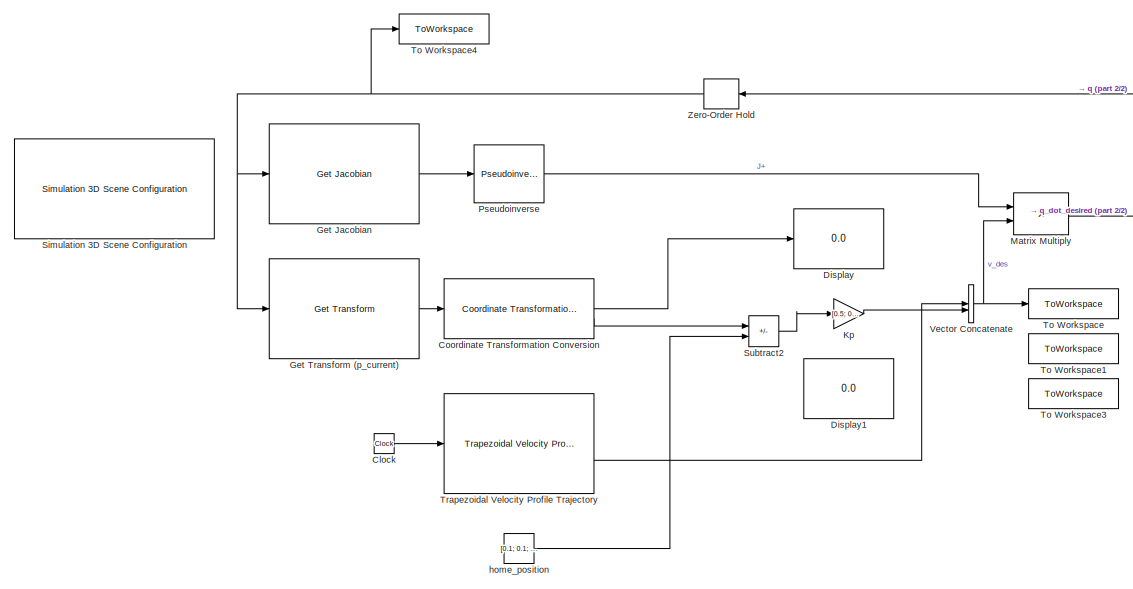
[diagram: root canvas - part 1/2, left side, full height]
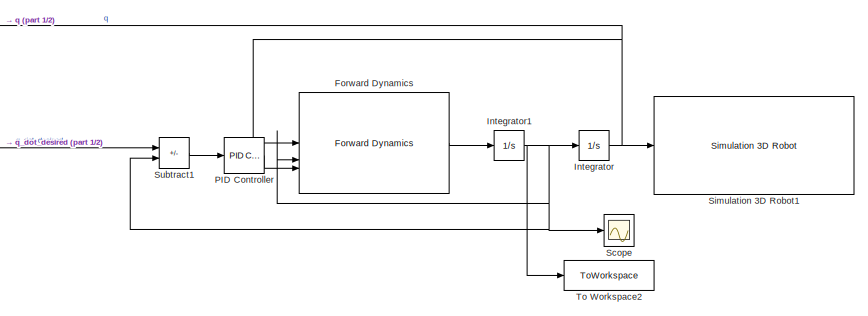
[diagram: root canvas - part 2/2, middle right region]
MODEL slx_4eb234691fa1
KIND model
CONFIG AbsTol = auto
CONFIG EnableMultiTasking = off
CONFIG FixedStep = auto
CONFIG MaxStep = auto
CONFIG MinStep = auto
CONFIG RelTol = 1e-3
CONFIG SampleTimeConstraint = Unconstrained
CONFIG SolverName = VariableStepAuto
CONFIG StartTime = 0.0
CONFIG StopTime = 10
BLOCK [Clock] Clock
BLOCK [Reference] Coordinate Transformation Conversion  REF=robotcorelib/Coordinate Transformation Conversion
  LibrarySourceBlock = robotutilslib/Coordinate Transformation Conversion
  SourceBlock = robotcorelib/Coordinate Transformation Conversion
  SourceType = robotics.slcore.internal.block.CoordinateTransformationConversion
BLOCK [Display] Display
  Decimation = 1
BLOCK [Display] Display1
  Decimation = 1
BLOCK [Reference] Forward Dynamics  REF=robotmaniplib/Forward Dynamics
  SourceBlock = robotmaniplib/Forward Dynamics
  SourceType = Forward Dynamics
BLOCK [Reference] Get Jacobian  REF=robotmaniplib/Get Jacobian
  SourceBlock = robotmaniplib/Get Jacobian
  SourceType = Get Jacobian
BLOCK [Reference] Get Transform (p_current)  REF=robotmaniplib/Get Transform
  SourceBlock = robotmaniplib/Get Transform
  SourceType = Get Transform
BLOCK [Integrator] Integrator
  InitialCondition = [0;0;0;0;0;0]
BLOCK [Integrator] Integrator1
  InitialCondition = [0;0;0;0;0;0]
BLOCK [Gain] Kp
  Gain = [0.5; 0.5; 0.5]
BLOCK [Product] Matrix Multiply
  Multiplication = Matrix(*)
BLOCK [Reference] PID Controller  REF=slpidlib/PID Controller
  LibrarySourceBlock = simulink/Continuous/PID Controller
  SourceBlock = slpidlib/PID Controller
  SourceType = PID 1dof
BLOCK [Reference] Pseudoinverse  REF=dspinverses/Pseudoinverse
  SourceBlock = dspinverses/Pseudoinverse
  SourceType = Pseudoinverse
BLOCK [Scope] Scope
  Floating = off
  NumInputPorts = 1
  ScopeSpecificationString = Simulink.scopes.TimeScopeBlockCfg('CurrentConfiguration', extmgr.ConfigurationSet(extmgr.Configuration('Core','General UI',true),extmgr.Configuration('Core','Source UI',true),extmgr.Configuration('Sources','WiredSimulink',true),extmgr.Configuration('Visuals','Time Domain',true,'SerializedDisplays',{struct('MinYLimReal','-63.01048','MaxYLimReal','50.69674','YLabelReal','','MinYLimMag','0.00000','Ma...<+1578ch>
BLOCK [Reference] Simulation 3D Robot1  REF=robotsim3dlib/Simulation 3D Robot
  SourceBlock = robotsim3dlib/Simulation 3D Robot
  SourceType = Simulation 3D Robot
BLOCK [Reference] Simulation 3D Scene Configuration  REF=sim3dlib/Simulation 3D Scene Configuration
  LibrarySourceBlock = robotsim3dlib/Simulation 3D Scene Configuration
  Priority = -1
  SourceBlock = sim3dlib/Simulation 3D Scene Configuration
  SourceType = Simulation 3D Scene Configuration
BLOCK [Sum] Subtract1
  IconShape = rectangular
  Inputs = +-
BLOCK [Sum] Subtract2
  IconShape = rectangular
  Inputs = -+
BLOCK [ToWorkspace] To Workspace
  FixptAsFi = on
  MaxDataPoints = inf
  SampleTime = 0.01
  SaveFormat = Structure With Time
  VariableName = v_des
BLOCK [ToWorkspace] To Workspace1
  FixptAsFi = on
  MaxDataPoints = inf
  SampleTime = 0.01
  SaveFormat = Structure With Time
  VariableName = p_current
BLOCK [ToWorkspace] To Workspace2
  FixptAsFi = on
  MaxDataPoints = inf
  SampleTime = 0.01
  SaveFormat = Structure With Time
  VariableName = q_dot
BLOCK [ToWorkspace] To Workspace3
  FixptAsFi = on
  MaxDataPoints = inf
  SampleTime = 0.01
  SaveFormat = Structure With Time
  VariableName = p_des
BLOCK [ToWorkspace] To Workspace4
  FixptAsFi = on
  MaxDataPoints = inf
  SampleTime = 0.01
  SaveFormat = Structure With Time
  VariableName = q
BLOCK [Reference] Trapezoidal Velocity Profile Trajectory  REF=robotcorelib/Trapezoidal Velocity Profile Trajectory
  LibrarySourceBlock = robotutilslib/Trapezoidal Velocity Profile Trajectory
  SourceBlock = robotcorelib/Trapezoidal Velocity Profile Trajectory
  SourceType = robotics.slcore.internal.block.TrapVelTrajSys
BLOCK [Concatenate] Vector Concatenate
BLOCK [ZeroOrderHold] Zero-Order Hold
  NameLocation = top
  SampleTime = -1
BLOCK [Constant] home_position
  Value = [0.1; 0.1; 0.1]
LINE Clock:1 -> Trapezoidal Velocity Profile Trajectory:1
LINE Coordinate Transformation Conversion:1 -> Display:1
LINE Coordinate Transformation Conversion:2 -> Subtract2:1
LINE Forward Dynamics:1 -> Integrator1:1
LINE Get Jacobian:1 -> Pseudoinverse:1
LINE Get Transform (p_current):1 -> Coordinate Transformation Conversion:1
NET Integrator1:1 -> Forward Dynamics:2, Integrator:1, Scope:1, Subtract1:2, To Workspace2:1
NET Integrator:1 -> Forward Dynamics:1, Simulation 3D Robot1:1, Zero-Order Hold:1
LINE Kp:1 -> Vector Concatenate:2
LINE Matrix Multiply:1 -> Subtract1:1
LINE PID Controller:1 -> Forward Dynamics:3
LINE Pseudoinverse:1 -> Matrix Multiply:1
LINE Subtract1:1 -> PID Controller:1
LINE Subtract2:1 -> Kp:1
LINE Trapezoidal Velocity Profile Trajectory:2 -> Vector Concatenate:1
NET Vector Concatenate:1 -> Matrix Multiply:2, To Workspace:1
NET Zero-Order Hold:1 -> Get Jacobian:1, Get Transform (p_current):1, To Workspace4:1
LINE home_position:1 -> Subtract2:2
note: NET lines group one-source signal fan-out (src -> all destinations, sorted); 1:1 wires keep LINE
